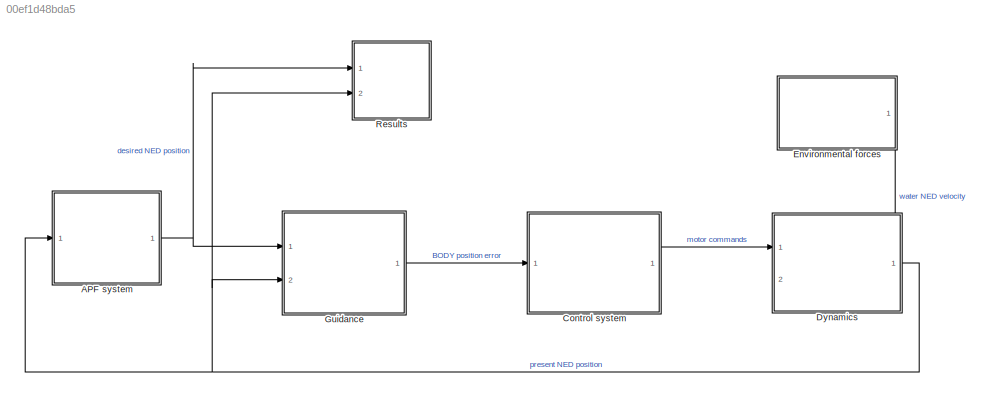
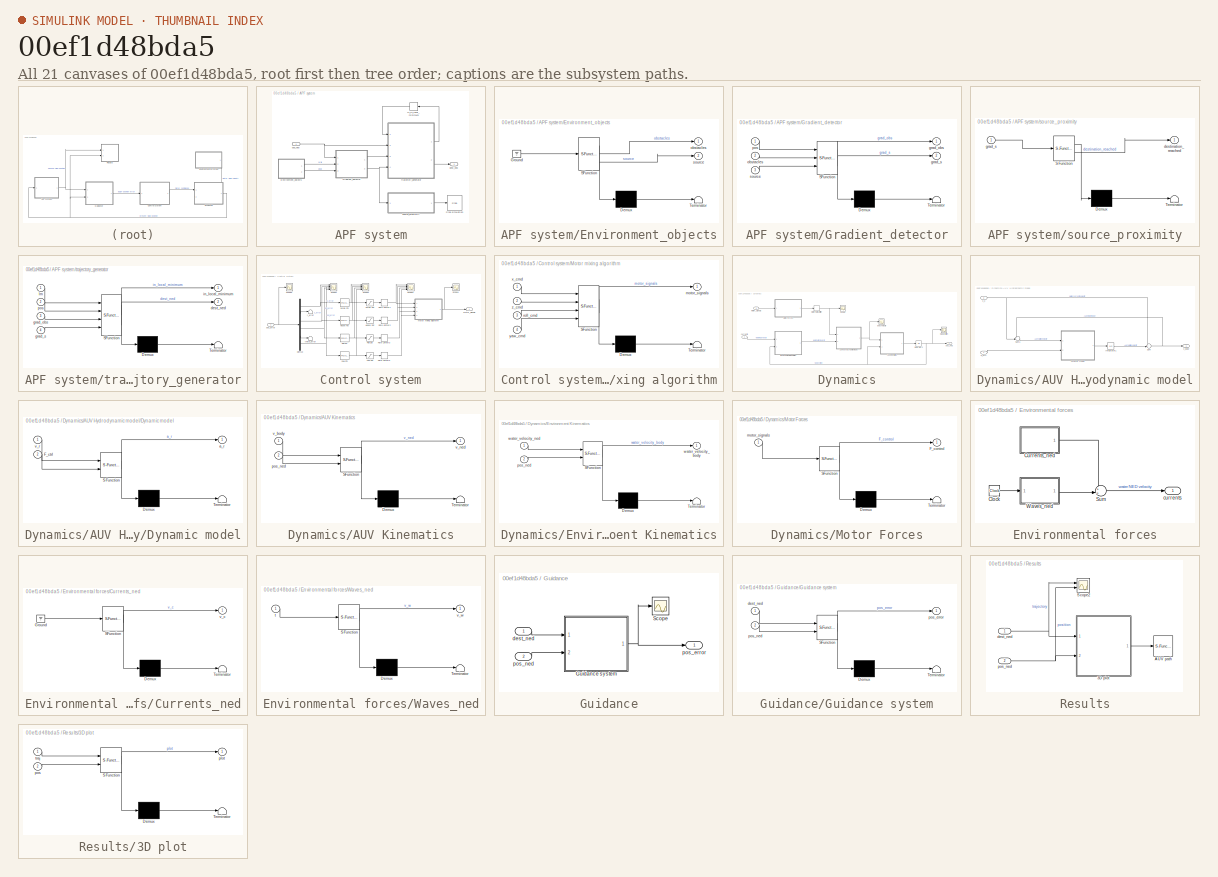
[diagram: thumbnail index - all 21 canvases of the model, root first then tree order]
MODEL slx_00ef1d48bda5
KIND model
CONFIG AbsTol = auto
CONFIG EnableMultiTasking = off
CONFIG FixedStep = 0.1
CONFIG MaxStep = 0.5
CONFIG MinStep = auto
CONFIG RelTol = 1e-3
CONFIG SampleTimeConstraint = Unconstrained
CONFIG SolverName = VariableStepAuto
CONFIG StartTime = 0.0
CONFIG StopTime = 600
BLOCK [SubSystem] APF system
  Ports = [1, 1]
  RequestExecContextInheritance = off
  ShowPortLabels = none
BLOCK [SubSystem] APF system/Environment_objects
  ErrorFcn = Stateflow.Translate.translate
  PermitHierarchicalResolution = ExplicitOnly
  Ports = [0, 2]
  RequestExecContextInheritance = off
  SFBlockType = MATLAB Function
  TreatAsAtomicUnit = on
BLOCK [Demux] APF system/Environment_objects/ Demux 
  Outputs = 1
  Ports = [1, 1]
BLOCK [Ground] APF system/Environment_objects/ Ground 
BLOCK [S-Function] APF system/Environment_objects/ SFunction 
  EnableBusSupport = on
  FunctionName = sf_sfun
  PortCounts = [1 3]
  Ports = [1, 3]
  SFcnIsStateOwnerBlock = off
  SFunctionDeploymentMode = off
  Tag = Stateflow S-Function 8
BLOCK [Terminator] APF system/Environment_objects/ Terminator 
BLOCK [Outport] APF system/Environment_objects/obstacles
BLOCK [Outport] APF system/Environment_objects/source
  Port = 2
BLOCK [SubSystem] APF system/Gradient_detector
  ErrorFcn = Stateflow.Translate.translate
  PermitHierarchicalResolution = ExplicitOnly
  Ports = [3, 2]
  RequestExecContextInheritance = off
  SFBlockType = MATLAB Function
  TreatAsAtomicUnit = on
BLOCK [Demux] APF system/Gradient_detector/ Demux 
  Outputs = 1
  Ports = [1, 1]
BLOCK [S-Function] APF system/Gradient_detector/ SFunction 
  EnableBusSupport = on
  FunctionName = sf_sfun
  PortCounts = [3 3]
  Ports = [3, 3]
  SFcnIsStateOwnerBlock = off
  SFunctionDeploymentMode = off
  Tag = Stateflow S-Function 1
BLOCK [Terminator] APF system/Gradient_detector/ Terminator 
BLOCK [Outport] APF system/Gradient_detector/grad_obs
BLOCK [Outport] APF system/Gradient_detector/grad_s
  Port = 2
BLOCK [Inport] APF system/Gradient_detector/obstacles
  Port = 2
BLOCK [Inport] APF system/Gradient_detector/pos
BLOCK [Inport] APF system/Gradient_detector/source
  Port = 3
BLOCK [Stop] APF system/Stop simulation
  NameLocation = top
BLOCK [Outport] APF system/dest_ned
BLOCK [Memory] APF system/is_in_local_minimum
  NameLocation = top
BLOCK [Inport] APF system/pos_ned
BLOCK [SubSystem] APF system/source_proximity
  ErrorFcn = Stateflow.Translate.translate
  PermitHierarchicalResolution = ExplicitOnly
  Ports = [1, 1]
  RequestExecContextInheritance = off
  SFBlockType = MATLAB Function
  TreatAsAtomicUnit = on
BLOCK [Demux] APF system/source_proximity/ Demux 
  Outputs = 1
  Ports = [1, 1]
BLOCK [S-Function] APF system/source_proximity/ SFunction 
  EnableBusSupport = on
  FunctionName = sf_sfun
  PortCounts = [1 2]
  Ports = [1, 2]
  SFcnIsStateOwnerBlock = off
  SFunctionDeploymentMode = off
  Tag = Stateflow S-Function 10
BLOCK [Terminator] APF system/source_proximity/ Terminator 
BLOCK [Outport] APF system/source_proximity/destination_reached
BLOCK [Inport] APF system/source_proximity/grad_s
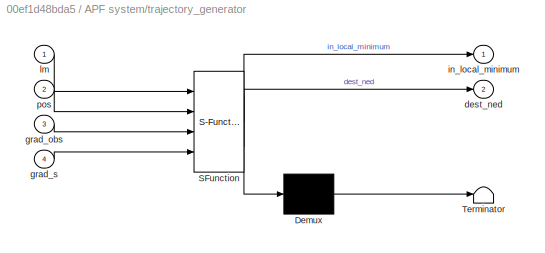
BLOCK [SubSystem] APF system/trajectory_generator
  ErrorFcn = Stateflow.Translate.translate
  PermitHierarchicalResolution = ExplicitOnly
  Ports = [4, 2]
  RequestExecContextInheritance = off
  SFBlockType = MATLAB Function
  TreatAsAtomicUnit = on
BLOCK [Demux] APF system/trajectory_generator/ Demux 
  Outputs = 1
  Ports = [1, 1]
BLOCK [S-Function] APF system/trajectory_generator/ SFunction 
  EnableBusSupport = on
  FunctionName = sf_sfun
  PortCounts = [4 3]
  Ports = [4, 3]
  SFcnIsStateOwnerBlock = off
  SFunctionDeploymentMode = off
  Tag = Stateflow S-Function 14
BLOCK [Terminator] APF system/trajectory_generator/ Terminator 
BLOCK [Outport] APF system/trajectory_generator/dest_ned
  Port = 2
BLOCK [Inport] APF system/trajectory_generator/grad_obs
  Port = 3
BLOCK [Inport] APF system/trajectory_generator/grad_s
  Port = 4
BLOCK [Outport] APF system/trajectory_generator/in_local_minimum
BLOCK [Inport] APF system/trajectory_generator/lm
BLOCK [Inport] APF system/trajectory_generator/pos
  Port = 2
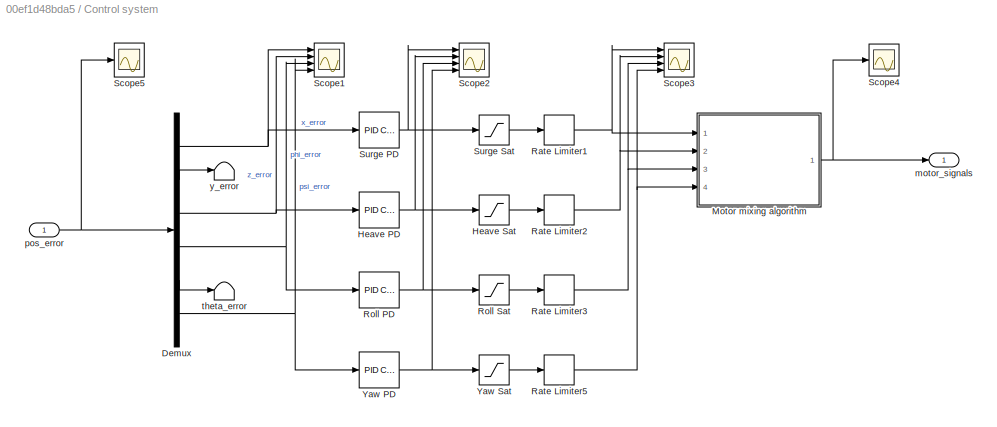
BLOCK [SubSystem] Control system
  Ports = [1, 1]
  RequestExecContextInheritance = off
  ShowPortLabels = none
BLOCK [Demux] Control system/Demux
  Outputs = 6
  Ports = [1, 6]
BLOCK [Reference] Control system/Heave PD  REF=pid_lib/PID Controller
  Ports = [1, 1]
  SourceBlock = pid_lib/PID Controller
  SourceProductBaseCode = SL
  SourceType = PID 1dof
BLOCK [Saturate] Control system/Heave Sat
  LowerLimit = -40
  UpperLimit = 40
  ZeroCross = off
BLOCK [SubSystem] Control system/Motor mixing algorithm
  ErrorFcn = Stateflow.Translate.translate
  PermitHierarchicalResolution = ExplicitOnly
  Ports = [4, 1]
  RequestExecContextInheritance = off
  SFBlockType = MATLAB Function
  TreatAsAtomicUnit = on
BLOCK [Demux] Control system/Motor mixing algorithm/ Demux 
  Outputs = 1
  Ports = [1, 1]
BLOCK [S-Function] Control system/Motor mixing algorithm/ SFunction 
  EnableBusSupport = on
  FunctionName = sf_sfun
  PortCounts = [4 2]
  Ports = [4, 2]
  SFcnIsStateOwnerBlock = off
  SFunctionDeploymentMode = off
  Tag = Stateflow S-Function 12
BLOCK [Terminator] Control system/Motor mixing algorithm/ Terminator 
BLOCK [Outport] Control system/Motor mixing algorithm/motor_signals
BLOCK [Inport] Control system/Motor mixing algorithm/roll_cmd
  Port = 3
BLOCK [Inport] Control system/Motor mixing algorithm/x_cmd
BLOCK [Inport] Control system/Motor mixing algorithm/yaw_cmd
  Port = 4
BLOCK [Inport] Control system/Motor mixing algorithm/z_cmd
  Port = 2
BLOCK [RateLimiter] Control system/Rate Limiter1
  FallingSlewLimit = -20
  RisingSlewLimit = 20
  SampleTimeMode = inherited
BLOCK [RateLimiter] Control system/Rate Limiter2
  FallingSlewLimit = -20
  RisingSlewLimit = 20
  SampleTimeMode = inherited
BLOCK [RateLimiter] Control system/Rate Limiter3
  FallingSlewLimit = -20
  RisingSlewLimit = 20
  SampleTimeMode = inherited
BLOCK [RateLimiter] Control system/Rate Limiter5
  FallingSlewLimit = -20
  RisingSlewLimit = 20
  SampleTimeMode = inherited
BLOCK [Reference] Control system/Roll PD  REF=pid_lib/PID Controller
  Ports = [1, 1]
  SourceBlock = pid_lib/PID Controller
  SourceProductBaseCode = SL
  SourceType = PID 1dof
BLOCK [Saturate] Control system/Roll Sat
  LowerLimit = -40
  UpperLimit = 40
  ZeroCross = off
BLOCK [Scope] Control system/Scope1
  Floating = off
  NumInputPorts = 4
  Ports = [4]
  ScopeSpecificationString = Simulink.scopes.TimeScopeBlockCfg('CurrentConfiguration', extmgr.ConfigurationSet(extmgr.Configuration('Core','General UI',true),extmgr.Configuration('Core','Source UI',true),extmgr.Configuration('Sources','WiredSimulink',true,'DataLoggingVariableName','ScopeData1'),extmgr.Configuration('Visuals','Time Domain',true,'SerializedDisplays',{struct('MinYLimReal','-3.35806','MaxYLimReal','15.62745','YLa...<+1475ch>
BLOCK [Scope] Control system/Scope2
  Floating = off
  NumInputPorts = 4
  Ports = [4]
  ScopeSpecificationString = Simulink.scopes.TimeScopeBlockCfg('CurrentConfiguration', extmgr.ConfigurationSet(extmgr.Configuration('Core','General UI',true),extmgr.Configuration('Core','Source UI',true),extmgr.Configuration('Sources','WiredSimulink',true,'DataLoggingVariableName','ScopeData2'),extmgr.Configuration('Visuals','Time Domain',true,'SerializedDisplays',{struct('MinYLimReal','-125.00000','MaxYLimReal','125.00000','...<+1600ch>
BLOCK [Scope] Control system/Scope3
  Floating = off
  NumInputPorts = 4
  Ports = [4]
  ScopeSpecificationString = Simulink.scopes.TimeScopeBlockCfg('CurrentConfiguration', extmgr.ConfigurationSet(extmgr.Configuration('Core','General UI',true),extmgr.Configuration('Core','Source UI',true),extmgr.Configuration('Sources','WiredSimulink',true,'DataLoggingVariableName','ScopeData3'),extmgr.Configuration('Visuals','Time Domain',true,'SerializedDisplays',{struct('MinYLimReal','-50.00000','MaxYLimReal','50.00000','YL...<+1614ch>
BLOCK [Scope] Control system/Scope4
  Floating = off
  NumInputPorts = 1
  Ports = [1]
  ScopeSpecificationString = Simulink.scopes.TimeScopeBlockCfg('CurrentConfiguration', extmgr.ConfigurationSet(extmgr.Configuration('Core','General UI',true),extmgr.Configuration('Core','Source UI',true),extmgr.Configuration('Sources','WiredSimulink',true,'DataLoggingVariableName','ScopeData1'),extmgr.Configuration('Visuals','Time Domain',true,'SerializedDisplays',{struct('MinYLimReal','-13.44997','MaxYLimReal','19.15006','YL...<+1718ch>
BLOCK [Scope] Control system/Scope5
  Floating = off
  NumInputPorts = 1
  Ports = [1]
  ScopeSpecificationString = Simulink.scopes.TimeScopeBlockCfg('CurrentConfiguration', extmgr.ConfigurationSet(extmgr.Configuration('Core','General UI',true),extmgr.Configuration('Core','Source UI',true),extmgr.Configuration('Sources','WiredSimulink',true,'DataLoggingVariableName','ScopeData2'),extmgr.Configuration('Visuals','Time Domain',true,'SerializedDisplays',{struct('MinYLimReal','-4.18599','MaxYLimReal','6.25862','YLab...<+1811ch>
BLOCK [Reference] Control system/Surge PD  REF=pid_lib/PID Controller
  Ports = [1, 1]
  SourceBlock = pid_lib/PID Controller
  SourceProductBaseCode = SL
  SourceType = PID 1dof
BLOCK [Saturate] Control system/Surge Sat
  LowerLimit = -40
  UpperLimit = 40
  ZeroCross = off
BLOCK [Reference] Control system/Yaw PD  REF=pid_lib/PID Controller
  Ports = [1, 1]
  SourceBlock = pid_lib/PID Controller
  SourceProductBaseCode = SL
  SourceType = PID 1dof
BLOCK [Saturate] Control system/Yaw Sat
  LowerLimit = -40
  UpperLimit = 40
  ZeroCross = off
BLOCK [Outport] Control system/motor_signals
BLOCK [Inport] Control system/pos_error
BLOCK [Terminator] Control system/theta_error
BLOCK [Terminator] Control system/y_error
BLOCK [SubSystem] Dynamics
  PortSchema = {"entries":[{"content":{"sides":[{"content":{"connectorIds":["In1"]},"type":"ConnectorPlacement.EquallySpacedRectSide","uuid":"9ee444f3-b955-488d-8e49-640ea0f7df37"},{"content":{"connectorIds":["Out1"],"side":"RIGHT"},"type":"ConnectorPlacement.EquallySpacedRectSide","uuid":"ce4b5243-31e8-415d-aaa8-03cbb0c8065f"},{"content":{"connectorIds":["In2"],"side":"TOP"},"type":"ConnectorPlacement.EquallySp...<+389ch>
  Ports = [2, 1]
  RequestExecContextInheritance = off
  ShowPortLabels = none
BLOCK [SubSystem] Dynamics/AUV Hydrodynamic model
  Ports = [2, 1]
  RequestExecContextInheritance = off
BLOCK [SubSystem] Dynamics/AUV Hydrodynamic model/Dynamic model
  ErrorFcn = Stateflow.Translate.translate
  PermitHierarchicalResolution = ExplicitOnly
  Ports = [2, 1]
  RequestExecContextInheritance = off
  SFBlockType = MATLAB Function
  TreatAsAtomicUnit = on
BLOCK [Demux] Dynamics/AUV Hydrodynamic model/Dynamic model/ Demux 
  Outputs = 1
  Ports = [1, 1]
BLOCK [S-Function] Dynamics/AUV Hydrodynamic model/Dynamic model/ SFunction 
  EnableBusSupport = on
  FunctionName = sf_sfun
  PortCounts = [2 2]
  Ports = [2, 2]
  SFcnIsStateOwnerBlock = off
  SFunctionDeploymentMode = off
  Tag = Stateflow S-Function 11
BLOCK [Terminator] Dynamics/AUV Hydrodynamic model/Dynamic model/ Terminator 
BLOCK [Inport] Dynamics/AUV Hydrodynamic model/Dynamic model/F_ctrl
  Port = 2
BLOCK [Outport] Dynamics/AUV Hydrodynamic model/Dynamic model/a_r
BLOCK [Inport] Dynamics/AUV Hydrodynamic model/Dynamic model/v_r
BLOCK [Inport] Dynamics/AUV Hydrodynamic model/F_ctrl
BLOCK [Integrator] Dynamics/AUV Hydrodynamic model/Integrator1
  Ports = [1, 1]
BLOCK [Sum] Dynamics/AUV Hydrodynamic model/Sum
  Inputs = ++|
  Ports = [2, 1]
BLOCK [Sum] Dynamics/AUV Hydrodynamic model/Sum1
  Inputs = +-|
  Ports = [2, 1]
BLOCK [Outport] Dynamics/AUV Hydrodynamic model/v_body
BLOCK [Inport] Dynamics/AUV Hydrodynamic model/v_c
  Port = 2
BLOCK [SubSystem] Dynamics/AUV Kinematics
  ErrorFcn = Stateflow.Translate.translate
  PermitHierarchicalResolution = ExplicitOnly
  Ports = [2, 1]
  RequestExecContextInheritance = off
  SFBlockType = MATLAB Function
  TreatAsAtomicUnit = on
BLOCK [Demux] Dynamics/AUV Kinematics/ Demux 
  Outputs = 1
  Ports = [1, 1]
BLOCK [S-Function] Dynamics/AUV Kinematics/ SFunction 
  EnableBusSupport = on
  FunctionName = sf_sfun
  PortCounts = [2 2]
  Ports = [2, 2]
  SFcnIsStateOwnerBlock = off
  SFunctionDeploymentMode = off
  Tag = Stateflow S-Function 4
BLOCK [Terminator] Dynamics/AUV Kinematics/ Terminator 
BLOCK [Inport] Dynamics/AUV Kinematics/pos_ned
  Port = 2
BLOCK [Inport] Dynamics/AUV Kinematics/v_body
BLOCK [Outport] Dynamics/AUV Kinematics/v_ned
BLOCK [SubSystem] Dynamics/Environment Kinematics
  ErrorFcn = Stateflow.Translate.translate
  PermitHierarchicalResolution = ExplicitOnly
  Ports = [2, 1]
  RequestExecContextInheritance = off
  SFBlockType = MATLAB Function
  TreatAsAtomicUnit = on
BLOCK [Demux] Dynamics/Environment Kinematics/ Demux 
  Outputs = 1
  Ports = [1, 1]
BLOCK [S-Function] Dynamics/Environment Kinematics/ SFunction 
  EnableBusSupport = on
  FunctionName = sf_sfun
  PortCounts = [2 2]
  Ports = [2, 2]
  SFcnIsStateOwnerBlock = off
  SFunctionDeploymentMode = off
  Tag = Stateflow S-Function 9
BLOCK [Terminator] Dynamics/Environment Kinematics/ Terminator 
BLOCK [Inport] Dynamics/Environment Kinematics/pos_ned
  Port = 2
BLOCK [Outport] Dynamics/Environment Kinematics/water_velocity_body
BLOCK [Inport] Dynamics/Environment Kinematics/water_velocity_ned
BLOCK [Integrator] Dynamics/Integrator3
  Ports = [1, 1]
BLOCK [SubSystem] Dynamics/Motor Forces
  ErrorFcn = Stateflow.Translate.translate
  PermitHierarchicalResolution = ExplicitOnly
  Ports = [1, 1]
  RequestExecContextInheritance = off
  SFBlockType = MATLAB Function
  TreatAsAtomicUnit = on
BLOCK [Demux] Dynamics/Motor Forces/ Demux 
  Outputs = 1
  Ports = [1, 1]
BLOCK [S-Function] Dynamics/Motor Forces/ SFunction 
  EnableBusSupport = on
  FunctionName = sf_sfun
  PortCounts = [1 2]
  Ports = [1, 2]
  SFcnIsStateOwnerBlock = off
  SFunctionDeploymentMode = off
  Tag = Stateflow S-Function 3
BLOCK [Terminator] Dynamics/Motor Forces/ Terminator 
BLOCK [Outport] Dynamics/Motor Forces/F_control
BLOCK [Inport] Dynamics/Motor Forces/motor_signals
BLOCK [RateLimiter] Dynamics/Motor Rate Limiter
  FallingSlewLimit = -10
  RisingSlewLimit = 10
  SampleTimeMode = inherited
BLOCK [Scope] Dynamics/NED position
  Floating = off
  NumInputPorts = 1
  Ports = [1]
  ScopeSpecificationString = Simulink.scopes.TimeScopeBlockCfg('CurrentConfiguration', extmgr.ConfigurationSet(extmgr.Configuration('Core','General UI',true),extmgr.Configuration('Core','Source UI',true),extmgr.Configuration('Sources','WiredSimulink',true,'DataLoggingVariableName','ScopeData3'),extmgr.Configuration('Visuals','Time Domain',true,'SerializedDisplays',{struct('MinYLimReal','-14.29242','MaxYLimReal','22.53209','YL...<+1492ch>
BLOCK [Scope] Dynamics/Scope
  Floating = off
  NumInputPorts = 1
  Ports = [1]
  ScopeSpecificationString = Simulink.scopes.TimeScopeBlockCfg('CurrentConfiguration', extmgr.ConfigurationSet(extmgr.Configuration('Core','General UI',true),extmgr.Configuration('Core','Source UI',true),extmgr.Configuration('Sources','WiredSimulink',true,'DataLoggingVariableName','ScopeData1'),extmgr.Configuration('Visuals','Time Domain',true,'SerializedDisplays',{struct('MinYLimReal','-3.4','MaxYLimReal','3.4','YLabelReal',...<+1824ch>
BLOCK [Scope] Dynamics/body velocity
  Floating = off
  NumInputPorts = 1
  Ports = [1]
  ScopeSpecificationString = Simulink.scopes.TimeScopeBlockCfg('CurrentConfiguration', extmgr.ConfigurationSet(extmgr.Configuration('Core','General UI',true),extmgr.Configuration('Core','Source UI',true),extmgr.Configuration('Sources','WiredSimulink',true,'DataLoggingVariableName','ScopeData2'),extmgr.Configuration('Visuals','Time Domain',true,'SerializedDisplays',{struct('MinYLimReal','-0.3849','MaxYLimReal','0.55518','YLabe...<+1784ch>
BLOCK [Inport] Dynamics/currents
  NameLocation = top
  Port = 2
BLOCK [Inport] Dynamics/motor_signals
BLOCK [Outport] Dynamics/pos_ned
  PortDimensions = 6
BLOCK [SubSystem] Environmental forces
  NameLocation = top
  PortSchema = {"entries":[{"content":{"sides":[{"content":{"connectorIds":[]},"type":"ConnectorPlacement.EquallySpacedRectSide","uuid":"0dd98e89-aff4-433c-b28f-c29455b8a07d"},{"content":{"connectorIds":[],"side":"RIGHT"},"type":"ConnectorPlacement.EquallySpacedRectSide","uuid":"953662a4-5b51-4456-b69c-eca28c97a39b"},{"content":{"connectorIds":[],"side":"TOP"},"type":"ConnectorPlacement.EquallySpacedRectSide","u...<+523ch>
  Ports = [0, 1]
  RequestExecContextInheritance = off
  ShowPortLabels = none
BLOCK [Clock] Environmental forces/Clock
BLOCK [SubSystem] Environmental forces/Currents_ned
  ErrorFcn = Stateflow.Translate.translate
  PermitHierarchicalResolution = ExplicitOnly
  Ports = [0, 1]
  RequestExecContextInheritance = off
  SFBlockType = MATLAB Function
  TreatAsAtomicUnit = on
BLOCK [Demux] Environmental forces/Currents_ned/ Demux 
  Outputs = 1
  Ports = [1, 1]
BLOCK [Ground] Environmental forces/Currents_ned/ Ground 
BLOCK [S-Function] Environmental forces/Currents_ned/ SFunction 
  EnableBusSupport = on
  FunctionName = sf_sfun
  PortCounts = [1 2]
  Ports = [1, 2]
  SFcnIsStateOwnerBlock = off
  SFunctionDeploymentMode = off
  Tag = Stateflow S-Function 2
BLOCK [Terminator] Environmental forces/Currents_ned/ Terminator 
BLOCK [Outport] Environmental forces/Currents_ned/v_c
BLOCK [Sum] Environmental forces/Sum
  Inputs = ++|
  Ports = [2, 1]
BLOCK [SubSystem] Environmental forces/Waves_ned
  ErrorFcn = Stateflow.Translate.translate
  PermitHierarchicalResolution = ExplicitOnly
  Ports = [1, 1]
  RequestExecContextInheritance = off
  SFBlockType = MATLAB Function
  TreatAsAtomicUnit = on
BLOCK [Demux] Environmental forces/Waves_ned/ Demux 
  Outputs = 1
  Ports = [1, 1]
BLOCK [S-Function] Environmental forces/Waves_ned/ SFunction 
  EnableBusSupport = on
  FunctionName = sf_sfun
  PortCounts = [1 2]
  Ports = [1, 2]
  SFcnIsStateOwnerBlock = off
  SFunctionDeploymentMode = off
  Tag = Stateflow S-Function 5
BLOCK [Terminator] Environmental forces/Waves_ned/ Terminator 
BLOCK [Inport] Environmental forces/Waves_ned/t
BLOCK [Outport] Environmental forces/Waves_ned/v_w
BLOCK [Outport] Environmental forces/currents
BLOCK [SubSystem] Guidance
  Ports = [2, 1]
  RequestExecContextInheritance = off
  ShowPortLabels = none
BLOCK [SubSystem] Guidance/Guidance system
  ErrorFcn = Stateflow.Translate.translate
  PermitHierarchicalResolution = ExplicitOnly
  Ports = [2, 1]
  RequestExecContextInheritance = off
  SFBlockType = MATLAB Function
  TreatAsAtomicUnit = on
BLOCK [Demux] Guidance/Guidance system/ Demux 
  Outputs = 1
  Ports = [1, 1]
BLOCK [S-Function] Guidance/Guidance system/ SFunction 
  EnableBusSupport = on
  FunctionName = sf_sfun
  PortCounts = [2 2]
  Ports = [2, 2]
  SFcnIsStateOwnerBlock = off
  SFunctionDeploymentMode = off
  Tag = Stateflow S-Function 7
BLOCK [Terminator] Guidance/Guidance system/ Terminator 
BLOCK [Inport] Guidance/Guidance system/dest_ned
BLOCK [Outport] Guidance/Guidance system/pos_error
BLOCK [Inport] Guidance/Guidance system/pos_ned
  Port = 2
BLOCK [Scope] Guidance/Scope
  Floating = off
  NumInputPorts = 1
  Ports = [1]
  ScopeSpecificationString = Simulink.scopes.TimeScopeBlockCfg('CurrentConfiguration', extmgr.ConfigurationSet(extmgr.Configuration('Core','General UI',true),extmgr.Configuration('Core','Source UI',true),extmgr.Configuration('Sources','WiredSimulink',true,'DataLoggingVariableName','ScopeData1'),extmgr.Configuration('Visuals','Time Domain',true,'SerializedDisplays',{struct('MinYLimReal','-3.02865','MaxYLimReal','3.69547','YLab...<+1611ch>
BLOCK [Inport] Guidance/dest_ned
BLOCK [Outport] Guidance/pos_error
BLOCK [Inport] Guidance/pos_ned
  Port = 2
BLOCK [SubSystem] Results
  Ports = [2]
  RequestExecContextInheritance = off
  ShowPortLabels = none
BLOCK [SubSystem] Results/3D plot
  ErrorFcn = Stateflow.Translate.translate
  PermitHierarchicalResolution = ExplicitOnly
  Ports = [2, 1]
  RequestExecContextInheritance = off
  SFBlockType = MATLAB Function
  TreatAsAtomicUnit = on
BLOCK [Demux] Results/3D plot/ Demux 
  Outputs = 1
  Ports = [1, 1]
BLOCK [S-Function] Results/3D plot/ SFunction 
  EnableBusSupport = on
  FunctionName = sf_sfun
  PortCounts = [2 2]
  Ports = [2, 2]
  SFcnIsStateOwnerBlock = off
  SFunctionDeploymentMode = off
  Tag = Stateflow S-Function 16
BLOCK [Terminator] Results/3D plot/ Terminator 
BLOCK [Outport] Results/3D plot/plot
BLOCK [Inport] Results/3D plot/pos
  Port = 2
BLOCK [Inport] Results/3D plot/traj
BLOCK [S-Function] Results/AUV path
  CopyFcn = if exist('sfun3d','file'), sfun3d([],[],[],'CopyBlock'); end
  DeleteFcn = if exist('sfun3d','file'), sfun3d([],[],[],'DeleteBlock'); end
  EnableBusSupport = off
  FunctionName = sfun3d
  LoadFcn = if exist('sfun3d','file'), sfun3d([],[],[],'LoadBlock'); end
  NameChangeFcn = if exist('sfun3d','file'), sfun3d([],[],[],'NameChange'); end
  NameLocation = top
  Parameters = ax,T,np,cp,gd,ls,mk,mx,hd,tb
  Ports = [1]
  SFcnIsStateOwnerBlock = off
  SFunctionDeploymentMode = off
BLOCK [Scope] Results/Scope2
  Floating = off
  NumInputPorts = 2
  Ports = [2]
  ScopeSpecificationString = Simulink.scopes.TimeScopeBlockCfg('CurrentConfiguration', extmgr.ConfigurationSet(extmgr.Configuration('Core','General UI',true),extmgr.Configuration('Core','Source UI',true),extmgr.Configuration('Sources','WiredSimulink',true,'DataLoggingVariableName','ScopeData1'),extmgr.Configuration('Visuals','Time Domain',true,'SerializedDisplays',{struct('MinYLimReal','-21.69634','MaxYLimReal','21.43207','YL...<+2218ch>
BLOCK [Inport] Results/dest_ned
BLOCK [Inport] Results/pos_ned
  Port = 2
LINE APF system/Environment_objects:1 -> APF system/Gradient_detector:2
LINE APF system/Environment_objects:2 -> APF system/Gradient_detector:3
LINE APF system/Gradient_detector:1 -> APF system/trajectory_generator:3
NET APF system/Gradient_detector:2 -> APF system/source_proximity:1, APF system/trajectory_generator:4
LINE APF system/is_in_local_minimum:1 -> APF system/trajectory_generator:1
NET APF system/pos_ned:1 -> APF system/Gradient_detector:1, APF system/trajectory_generator:2
LINE APF system/source_proximity:1 -> APF system/Stop simulation:1
LINE APF system/trajectory_generator:1 -> APF system/is_in_local_minimum:1
LINE APF system/trajectory_generator:2 -> APF system/dest_ned:1
NET APF system:1 -> Guidance:1, Results:1
NET Control system/Demux:1 -> Control system/Scope1:1, Control system/Surge PD:1
LINE Control system/Demux:2 -> Control system/y_error:1
NET Control system/Demux:3 -> Control system/Heave PD:1, Control system/Scope1:2
NET Control system/Demux:4 -> Control system/Roll PD:1, Control system/Scope1:3
LINE Control system/Demux:5 -> Control system/theta_error:1
NET Control system/Demux:6 -> Control system/Scope1:4, Control system/Yaw PD:1
NET Control system/Heave PD:1 -> Control system/Heave Sat:1, Control system/Scope2:2
LINE Control system/Heave Sat:1 -> Control system/Rate Limiter2:1
NET Control system/Motor mixing algorithm:1 -> Control system/Scope4:1, Control system/motor_signals:1
NET Control system/Rate Limiter1:1 -> Control system/Motor mixing algorithm:1, Control system/Scope3:1
NET Control system/Rate Limiter2:1 -> Control system/Motor mixing algorithm:2, Control system/Scope3:2
NET Control system/Rate Limiter3:1 -> Control system/Motor mixing algorithm:3, Control system/Scope3:3
NET Control system/Rate Limiter5:1 -> Control system/Motor mixing algorithm:4, Control system/Scope3:4
NET Control system/Roll PD:1 -> Control system/Roll Sat:1, Control system/Scope2:3
LINE Control system/Roll Sat:1 -> Control system/Rate Limiter3:1
NET Control system/Surge PD:1 -> Control system/Scope2:1, Control system/Surge Sat:1
LINE Control system/Surge Sat:1 -> Control system/Rate Limiter1:1
NET Control system/Yaw PD:1 -> Control system/Scope2:4, Control system/Yaw Sat:1
LINE Control system/Yaw Sat:1 -> Control system/Rate Limiter5:1
NET Control system/pos_error:1 -> Control system/Demux:1, Control system/Scope5:1
LINE Control system:1 -> Dynamics:1
LINE Dynamics/AUV Hydrodynamic model/Dynamic model:1 -> Dynamics/AUV Hydrodynamic model/Integrator1:1
LINE Dynamics/AUV Hydrodynamic model/F_ctrl:1 -> Dynamics/AUV Hydrodynamic model/Dynamic model:2
LINE Dynamics/AUV Hydrodynamic model/Integrator1:1 -> Dynamics/AUV Hydrodynamic model/Sum:2
LINE Dynamics/AUV Hydrodynamic model/Sum1:1 -> Dynamics/AUV Hydrodynamic model/Dynamic model:1
NET Dynamics/AUV Hydrodynamic model/Sum:1 -> Dynamics/AUV Hydrodynamic model/Sum1:1, Dynamics/AUV Hydrodynamic model/v_body:1
NET Dynamics/AUV Hydrodynamic model/v_c:1 -> Dynamics/AUV Hydrodynamic model/Sum1:2, Dynamics/AUV Hydrodynamic model/Sum:1
NET Dynamics/AUV Hydrodynamic model:1 -> Dynamics/AUV Kinematics:1, Dynamics/body velocity:1
LINE Dynamics/AUV Kinematics:1 -> Dynamics/Integrator3:1
LINE Dynamics/Environment Kinematics:1 -> Dynamics/AUV Hydrodynamic model:2
NET Dynamics/Integrator3:1 -> Dynamics/AUV Kinematics:2, Dynamics/Environment Kinematics:2, Dynamics/NED position:1, Dynamics/pos_ned:1
LINE Dynamics/Motor Forces:1 -> Dynamics/Motor Rate Limiter:1
NET Dynamics/Motor Rate Limiter:1 -> Dynamics/AUV Hydrodynamic model:1, Dynamics/Scope:1
LINE Dynamics/currents:1 -> Dynamics/Environment Kinematics:1
LINE Dynamics/motor_signals:1 -> Dynamics/Motor Forces:1
NET Dynamics:1 -> APF system:1, Guidance:2, Results:2
LINE Environmental forces/Clock:1 -> Environmental forces/Waves_ned:1
LINE Environmental forces/Currents_ned:1 -> Environmental forces/Sum:1
LINE Environmental forces/Sum:1 -> Environmental forces/currents:1
LINE Environmental forces/Waves_ned:1 -> Environmental forces/Sum:2
LINE Environmental forces:1 -> Dynamics:2
NET Guidance/Guidance system:1 -> Guidance/Scope:1, Guidance/pos_error:1
LINE Guidance/dest_ned:1 -> Guidance/Guidance system:1
LINE Guidance/pos_ned:1 -> Guidance/Guidance system:2
LINE Guidance:1 -> Control system:1
LINE Results/3D plot:1 -> Results/AUV path:1
NET Results/dest_ned:1 -> Results/3D plot:1, Results/Scope2:1
NET Results/pos_ned:1 -> Results/3D plot:2, Results/Scope2:2
note: NET lines group one-source signal fan-out (src -> all destinations, sorted); 1:1 wires keep LINE
CHART Control system/Motor mixing algorithm states=1 transitions=1
  STATE_LABEL 'eML_blk_kernel()'
  STATE_LABEL 'SCRIPT:\nfunction motor_signals = fcn(x_cmd, z_cmd, roll_cmd, yaw_cmd)\n\n% motor_limit is an arbitary value representing max signal level.\n% This is scaled in the motor model so that a motor is at full power when\n% its motor_signal is 40, and off when its motor_signal is 0.\nmotor_signal_max = 40; \n\n% Linear and rotational commands on one motor may combine to exceed the\n% limit of that motor. In this...<+561ch>'
CHART APF system/trajectory_generator states=1 transitions=1
  STATE_LABEL 'eML_blk_kernel()'
  STATE_LABEL 'SCRIPT:\nfunction [in_local_minimum, dest_ned]= fcn(lm, pos, grad_obs, grad_s)\n\n    CONSIDER_OBSTACLES = 1;\n    USE_WEIGHTED_SUM = 0;\n    SPEED_SCALE = 0.8;        % scales AUV speed\n   \n    % Local minimum checks\n    source_obs_angle_diff = atan2(norm(cross(grad_s, grad_obs)), dot(grad_s, grad_obs)); % Angle between gradients\n    obs_angle_diff = atan2(norm(cross([0, 0, -1], grad_obs)), dot([0, 0,...<+1483ch>'
CHART Results/3D plot states=1 transitions=1
  STATE_LABEL 'eML_blk_kernel()'
  STATE_LABEL 'SCRIPT:\nfunction plot = fcn(traj, pos)\n plot = [traj(2); traj(1); -traj(3); pos(2); pos(1); -pos(3)];'
CHART APF system/Gradient_detector states=1 transitions=1
  STATE_LABEL 'eML_blk_kernel()'
  STATE_LABEL 'SCRIPT:\nfunction [grad_obs, grad_s] = fcn(pos, obstacles, source)\n\n    % Calculate gradient due to obstacles\n    % Find shortest distance between obstacle and position    \n    if pos(1) < obstacles(1, 4) && pos(3) < obstacles(3, 4)\n        % postion is to the bottom left of obstacle\n        d_obs = obstacles(:, 4) - pos(1:3);\n\n    elseif pos(1) < obstacles(1, 1) && pos(3) > obstacles(3, 1)\n       ...<+1698ch>'
CHART Environmental forces/Currents_ned states=1 transitions=1
  STATE_LABEL 'eML_blk_kernel()'
  STATE_LABEL 'SCRIPT:\nfunction v_c = fcn()\n    % currents are irrotational\n    % v_c is the ned velocity of the current     \n\n%     v_c = [1; 0; 0];\n    v_c = [0; 0; 0];\nend'
CHART Dynamics/Motor Forces states=1 transitions=1
  STATE_LABEL 'eML_blk_kernel()'
  STATE_LABEL 'SCRIPT:\nfunction F_control = fcn(motor_signals)\n% x, y, and z axis relates to local front, starboard, and down directions\n% phi, theta, and psi represents roll, pitch, and yaw \n\n% assuming that the force produced by each motor is proportonal to the\n% signal voltage\n\nmotor_signal_max = 40;\nmotor_thrust_max = 1.36;    % (N) See Propulsion_forces.m for estimate\n\nk = motor_thrust_max/motor_signal_max;...<+451ch>'
CHART Dynamics/AUV Kinematics states=1 transitions=1
  STATE_LABEL 'eML_blk_kernel()'
  STATE_LABEL 'SCRIPT:\nfunction v_ned = fcn(v_body, pos_ned)\n% Transform from AUV body frame to NED frame\n\n    J = Jacobian(pos_ned(4), pos_ned(5), pos_ned(6)); \n    v_ned = J * v_body;\nend\n'
CHART Environmental forces/Waves_ned states=1 transitions=1
  STATE_LABEL 'eML_blk_kernel()'
  STATE_LABEL 'SCRIPT:\nfunction v_w = fcn(t)\n    % currents are irrotational\n    % v_w is the NED velocity of the water in the wave\n    % sine function is used to generate the waves\n    \n    wave_period = 10; % time between each wave in seconds\n    wave_amplitude = 0;\n%     wave_amplitude = 0.1; % maximum water velocity of wave (m/s)\n    \n    wave_velocity = wave_amplitude * cos(pi*t/wave_period);\n    v_w = [0; ...<+23ch>'
CHART Guidance/Guidance system states=1 transitions=1
  STATE_LABEL 'eML_blk_kernel()'
  STATE_LABEL 'SCRIPT:\nfunction pos_error = fcn(dest_ned, pos_ned)\n    % note that x is north, y is east and z is down    \n    N_error = dest_ned(1)-pos_ned(1);\n    E_error = dest_ned(2)-pos_ned(2);\n    D_error = dest_ned(3)-pos_ned(3);\n\n    current_heading = pos_ned(6);\n    desired_heading = atan2(E_error, N_error);\n\n    % convert to body axis\n    x_error = max([-1, N_error*cos(current_heading)+E_error*sin(curr...<+750ch>'
CHART APF system/Environment_objects states=1 transitions=1
  STATE_LABEL 'eML_blk_kernel()'
  STATE_LABEL 'SCRIPT:\nfunction [obstacles, source] = fcn()\nLOCAL_MINIMUM = 0;\n\nif LOCAL_MINIMUM == 1\n    % Source that detector is looking for\n    source = [10; 25; 14];\n    \n    % obstacle to be avoided \n    % coordinates ordered in top-left, top-right, bottom-right,  bottom-left\n    obstacles = [\n          5, 15, 15,  5; \n         20, 20, 20, 20; \n         15, 15,  5, 5\n    ];\nelse\n    source = [30; 30; 20];\n...<+106ch>'
CHART Dynamics/Environment Kinematics states=1 transitions=1
  STATE_LABEL 'eML_blk_kernel()'
  STATE_LABEL 'SCRIPT:\nfunction water_velocity_body = fcn(water_velocity_ned, pos_ned)\n    R = rotateZYX(pos_ned(4), pos_ned(5), pos_ned(6));\n    w_v =  R \\ water_velocity_ned;\n    water_velocity_body = [w_v(1); w_v(2); w_v(3); 0; 0; 0];\nend'
CHART APF system/source_proximity states=1 transitions=1
  STATE_LABEL 'eML_blk_kernel()'
  STATE_LABEL 'SCRIPT:\nfunction destination_reached = fcn(grad_s)\n\n    % End simulation if source is very close\n    destination_reached = 0;\n    arrival_term = 1 - norm(grad_s);\n    if arrival_term > 0.95\n        destination_reached = 1;\n    end\n\n'
CHART Dynamics/AUV Hydrodynamic model/Dynamic model states=1 transitions=1
  STATE_LABEL 'eML_blk_kernel()'
  STATE_LABEL 'SCRIPT:\nfunction a_r = fcn(v_r, F_ctrl)\n% v_r is velocity of the AUV relative to the water\n% Uses AUV dynamic model file to get acceleration of the AUV relative to\n% the water\n\n% Uncomment to view simulaiton with wave only forces\n% F_ctrl(1) = 0;\n% F_ctrl(2) = 0;\n% F_ctrl(3) = 0;\n\n[M, C, D, g] = AUV_dynamic_model(v_r);    \na_r = M\\(F_ctrl - C*v_r - D*v_r - g);\n'
CHART  states=0 transitions=0
CHART  states=0 transitions=0
CHART  states=0 transitions=0
CHART  states=0 transitions=0
CHART  states=0 transitions=0
CHART  states=0 transitions=0
CHART  states=0 transitions=0
CHART  states=0 transitions=0
CHART  states=0 transitions=0
CHART  states=0 transitions=0
CHART  states=0 transitions=0
CHART  states=0 transitions=0
CHART  states=0 transitions=0
